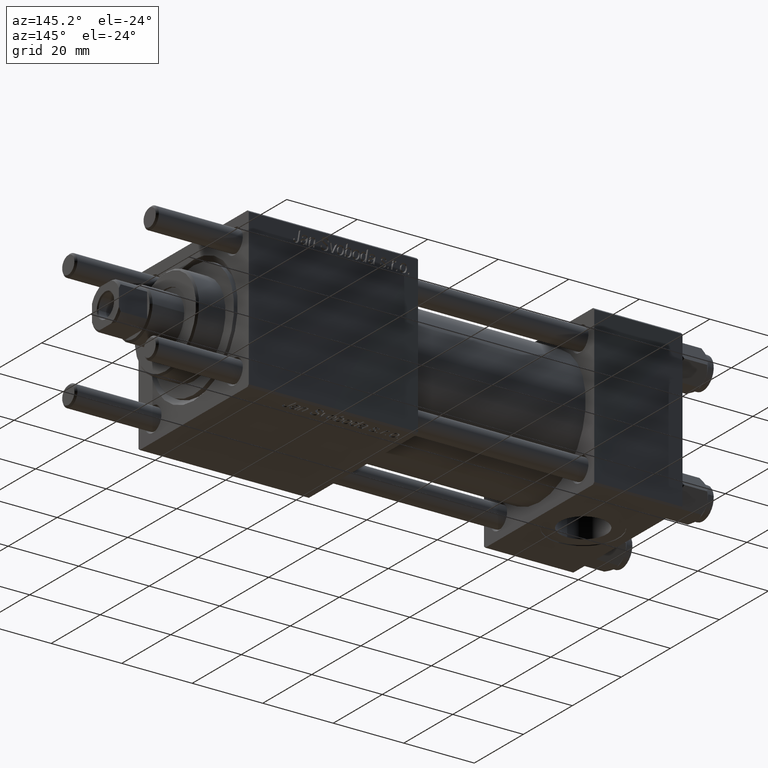
[diagram: clean part render]
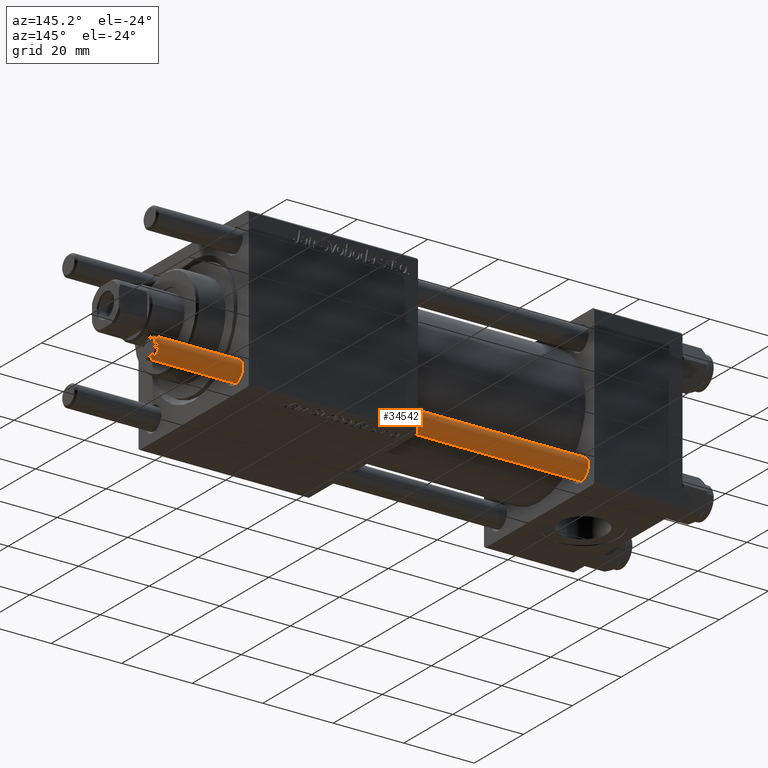
[diagram: same view with one face highlighted and labeled with its STEP entity id]
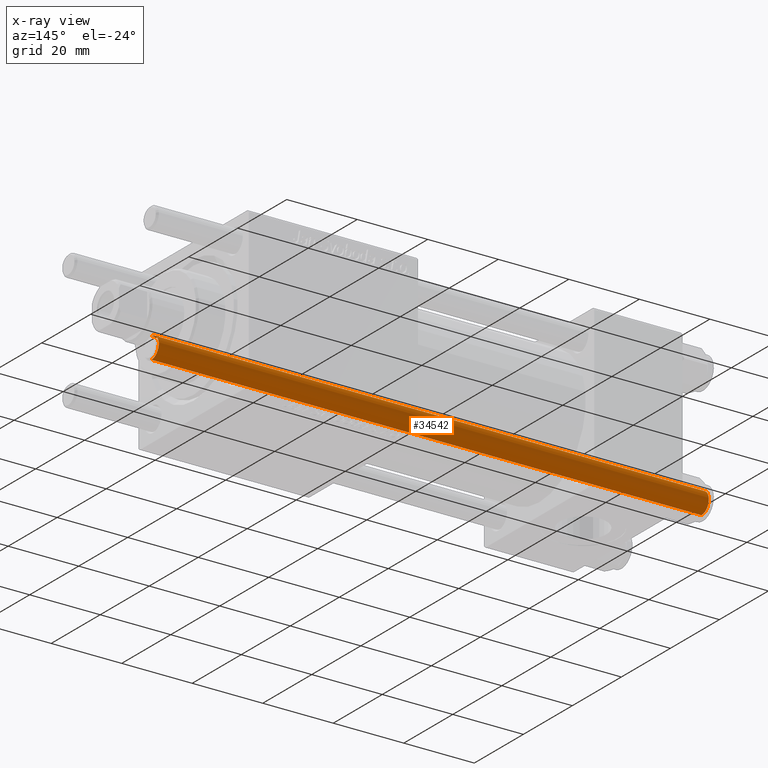
[diagram: x-ray of the same camera — body ghosted, the highlighted face saturated]
A machine part, auxiliary view. The second image highlights one B-rep face of the part: STEP entity #34542.
The next image is the same camera in x-ray: the body ghosted, the highlighted face saturated — about 0% of this face is hidden behind the body in this view.
In plain terms, the highlighted cylindrical surface (edge-blend (fillet) strip) has radius 3 mm, axis along (-1, -0, 0).
Its self-contained STEP definition (entity closure, byte-faithful):
#230 = VERTEX_POINT ( 'NONE', #53384 ) ;
#237 = FACE_OUTER_BOUND ( 'NONE', #27977, .T. ) ;
#1018 = CIRCLE ( 'NONE', #44080, 3.000000000000000444 ) ;
#3456 = VECTOR ( 'NONE', #32984, 1000.000000000000000 ) ;
#3643 = ORIENTED_EDGE ( 'NONE', *, *, #23537, .F. ) ;
#4004 = CYLINDRICAL_SURFACE ( 'NONE', #33129, 3.000000000000000444 ) ;
#8868 = CARTESIAN_POINT ( 'NONE',  ( 0.000000000000000000, 0.000000000000000000, 157.0000000000000000 ) ) ;
#10523 = CARTESIAN_POINT ( 'NONE',  ( 3.000000000000000444, 3.673940397442060361E-16, 156.5000000000000284 ) ) ;
#10704 = CARTESIAN_POINT ( 'NONE',  ( -3.000000000000000444, 0.000000000000000000, 0.4999999999999726885 ) ) ;
#10978 = DIRECTION ( 'NONE',  ( 1.000000000000000000, 0.000000000000000000, 0.000000000000000000 ) ) ;
#13142 = VERTEX_POINT ( 'NONE', #10704 ) ;
#13630 = ORIENTED_EDGE ( 'NONE', *, *, #34798, .T. ) ;
#15478 = CARTESIAN_POINT ( 'NONE',  ( -3.000000000000000444, 0.000000000000000000, 157.0000000000000000 ) ) ;
#16631 = DIRECTION ( 'NONE',  ( -1.000000000000000000, 0.000000000000000000, 0.000000000000000000 ) ) ;
#17197 = CIRCLE ( 'NONE', #52032, 3.000000000000000444 ) ;
#18405 = EDGE_CURVE ( 'NONE', #230, #13142, #17197, .T. ) ;
#23537 = EDGE_CURVE ( 'NONE', #40956, #13142, #54801, .T. ) ;
#25459 = DIRECTION ( 'NONE',  ( 0.000000000000000000, 0.000000000000000000, -1.000000000000000000 ) ) ;
#27977 = EDGE_LOOP ( 'NONE', ( #13630, #47340, #35531, #3643 ) ) ;
#28184 = DIRECTION ( 'NONE',  ( -0.000000000000000000, -0.000000000000000000, -1.000000000000000000 ) ) ;
#29797 = EDGE_CURVE ( 'NONE', #56261, #230, #41092, .T. ) ;
#32525 = CARTESIAN_POINT ( 'NONE',  ( 0.000000000000000000, 0.000000000000000000, 0.4999999999999726885 ) ) ;
#32984 = DIRECTION ( 'NONE',  ( -0.000000000000000000, -0.000000000000000000, -1.000000000000000000 ) ) ;
#33129 = AXIS2_PLACEMENT_3D ( 'NONE', #8868, #52513, #16631 ) ;
#34081 = CARTESIAN_POINT ( 'NONE',  ( 0.000000000000000000, 0.000000000000000000, 156.5000000000000284 ) ) ;
#34399 = CARTESIAN_POINT ( 'NONE',  ( -3.000000000000000444, 0.000000000000000000, 156.5000000000000284 ) ) ;
#34542 = ADVANCED_FACE ( 'NONE', ( #237 ), #4004, .T. ) ;
#34798 = EDGE_CURVE ( 'NONE', #40956, #56261, #1018, .T. ) ;
#35531 = ORIENTED_EDGE ( 'NONE', *, *, #18405, .T. ) ;
#40956 = VERTEX_POINT ( 'NONE', #34399 ) ;
#41092 = LINE ( 'NONE', #45966, #55913 ) ;
#41964 = DIRECTION ( 'NONE',  ( -0.000000000000000000, -0.000000000000000000, 1.000000000000000000 ) ) ;
#42959 = DIRECTION ( 'NONE',  ( 1.000000000000000000, 0.000000000000000000, 0.000000000000000000 ) ) ;
#44080 = AXIS2_PLACEMENT_3D ( 'NONE', #34081, #25459, #42959 ) ;
#45966 = CARTESIAN_POINT ( 'NONE',  ( 3.000000000000000444, 3.673940397442060361E-16, 157.0000000000000000 ) ) ;
#47340 = ORIENTED_EDGE ( 'NONE', *, *, #29797, .T. ) ;
#52032 = AXIS2_PLACEMENT_3D ( 'NONE', #32525, #41964, #10978 ) ;
#52513 = DIRECTION ( 'NONE',  ( -0.000000000000000000, -0.000000000000000000, -1.000000000000000000 ) ) ;
#53384 = CARTESIAN_POINT ( 'NONE',  ( 3.000000000000000444, 3.673940397442060361E-16, 0.4999999999999726885 ) ) ;
#54801 = LINE ( 'NONE', #15478, #3456 ) ;
#55913 = VECTOR ( 'NONE', #28184, 1000.000000000000000 ) ;
#56261 = VERTEX_POINT ( 'NONE', #10523 ) ;